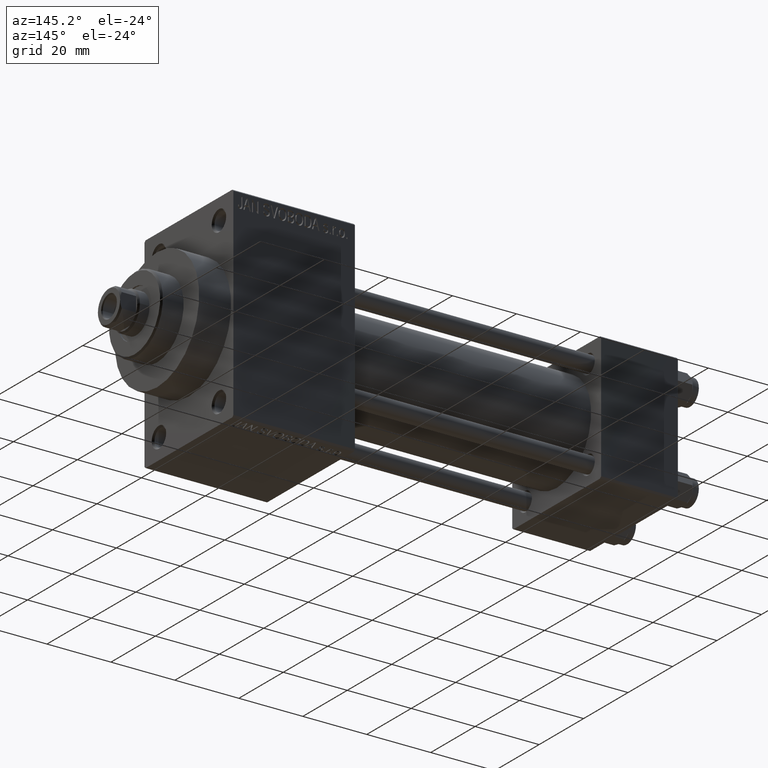
[diagram: clean part render]
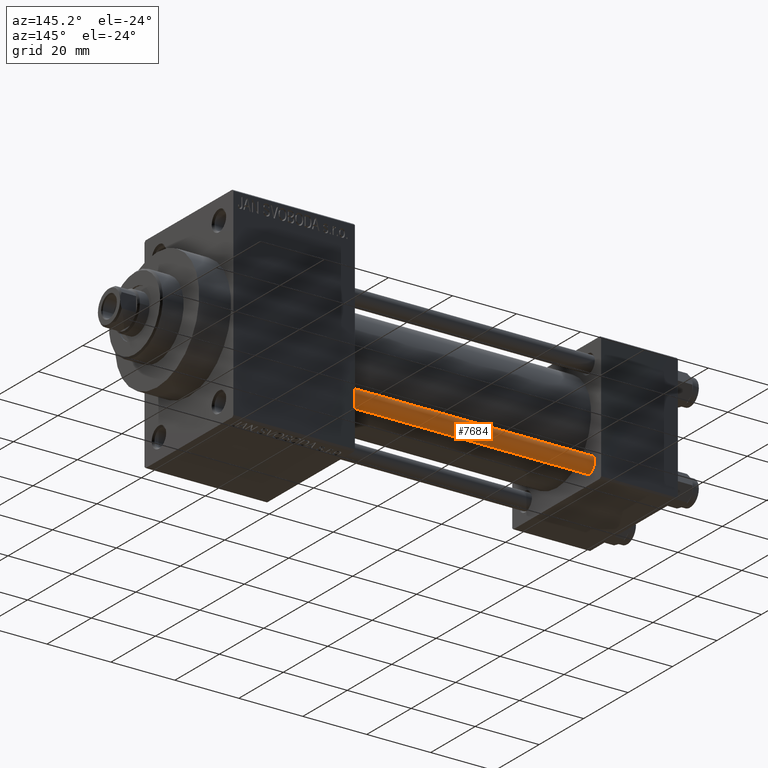
[diagram: same view with one face highlighted and labeled with its STEP entity id]
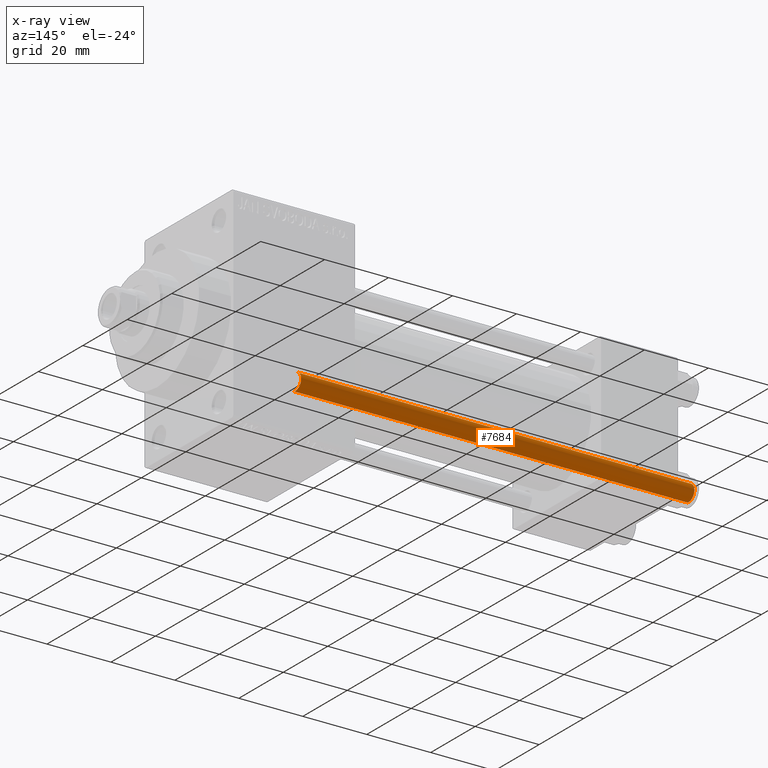
[diagram: x-ray of the same camera — body ghosted, the highlighted face saturated]
A machine part, auxiliary view. The second image highlights one B-rep face of the part: STEP entity #7684.
The next image is the same camera in x-ray: the body ghosted, the highlighted face saturated — about 0% of this face is hidden behind the body in this view.
In plain terms, the highlighted cylindrical surface (edge-blend (fillet) strip) has radius 2.5 mm, axis along (1, -0, 0).
Its self-contained STEP definition (entity closure, byte-faithful):
#597 = EDGE_LOOP ( 'NONE', ( #34103, #6961, #8310, #22527 ) ) ;
#3958 = CIRCLE ( 'NONE', #4737, 2.500000000000000000 ) ;
#4737 = AXIS2_PLACEMENT_3D ( 'NONE', #17490, #28925, #6769 ) ;
#6747 = CARTESIAN_POINT ( 'NONE',  ( 0.000000000000000000, 0.000000000000000000, 123.5000000000000000 ) ) ;
#6769 = DIRECTION ( 'NONE',  ( 1.000000000000000000, 0.000000000000000000, 0.000000000000000000 ) ) ;
#6961 = ORIENTED_EDGE ( 'NONE', *, *, #10254, .T. ) ;
#7637 = CARTESIAN_POINT ( 'NONE',  ( -2.500000000000000000, 0.000000000000000000, 124.0000000000000000 ) ) ;
#7684 = ADVANCED_FACE ( 'NONE', ( #31568 ), #16819, .T. ) ;
#7699 = CIRCLE ( 'NONE', #27442, 2.500000000000000000 ) ;
#8310 = ORIENTED_EDGE ( 'NONE', *, *, #34347, .T. ) ;
#10254 = EDGE_CURVE ( 'NONE', #34848, #20727, #12142, .T. ) ;
#12142 = LINE ( 'NONE', #26675, #40678 ) ;
#15264 = DIRECTION ( 'NONE',  ( -0.000000000000000000, -0.000000000000000000, -1.000000000000000000 ) ) ;
#15743 = CARTESIAN_POINT ( 'NONE',  ( 2.500000000000000000, 3.061616997868383141E-16, 0.5000000000000004441 ) ) ;
#16819 = CYLINDRICAL_SURFACE ( 'NONE', #28407, 2.500000000000000000 ) ;
#17490 = CARTESIAN_POINT ( 'NONE',  ( 0.000000000000000000, 0.000000000000000000, 0.5000000000000004441 ) ) ;
#20727 = VERTEX_POINT ( 'NONE', #15743 ) ;
#21281 = DIRECTION ( 'NONE',  ( 1.000000000000000000, 0.000000000000000000, 0.000000000000000000 ) ) ;
#21315 = DIRECTION ( 'NONE',  ( -0.000000000000000000, -0.000000000000000000, -1.000000000000000000 ) ) ;
#22527 = ORIENTED_EDGE ( 'NONE', *, *, #31761, .F. ) ;
#22853 = VERTEX_POINT ( 'NONE', #43037 ) ;
#23040 = VECTOR ( 'NONE', #36460, 1000.000000000000000 ) ;
#24165 = CARTESIAN_POINT ( 'NONE',  ( -2.500000000000000000, 0.000000000000000000, 0.5000000000000004441 ) ) ;
#26675 = CARTESIAN_POINT ( 'NONE',  ( 2.500000000000000000, 3.061616997868383141E-16, 124.0000000000000000 ) ) ;
#26827 = VERTEX_POINT ( 'NONE', #24165 ) ;
#27442 = AXIS2_PLACEMENT_3D ( 'NONE', #6747, #42947, #21281 ) ;
#27551 = EDGE_CURVE ( 'NONE', #22853, #34848, #7699, .T. ) ;
#27994 = DIRECTION ( 'NONE',  ( -1.000000000000000000, 0.000000000000000000, 0.000000000000000000 ) ) ;
#28407 = AXIS2_PLACEMENT_3D ( 'NONE', #28463, #21315, #27994 ) ;
#28463 = CARTESIAN_POINT ( 'NONE',  ( 0.000000000000000000, 0.000000000000000000, 124.0000000000000000 ) ) ;
#28925 = DIRECTION ( 'NONE',  ( -0.000000000000000000, -0.000000000000000000, 1.000000000000000000 ) ) ;
#31568 = FACE_OUTER_BOUND ( 'NONE', #597, .T. ) ;
#31761 = EDGE_CURVE ( 'NONE', #22853, #26827, #40029, .T. ) ;
#32557 = CARTESIAN_POINT ( 'NONE',  ( 2.500000000000000000, 3.061616997868383141E-16, 123.5000000000000000 ) ) ;
#34103 = ORIENTED_EDGE ( 'NONE', *, *, #27551, .T. ) ;
#34347 = EDGE_CURVE ( 'NONE', #20727, #26827, #3958, .T. ) ;
#34848 = VERTEX_POINT ( 'NONE', #32557 ) ;
#36460 = DIRECTION ( 'NONE',  ( -0.000000000000000000, -0.000000000000000000, -1.000000000000000000 ) ) ;
#40029 = LINE ( 'NONE', #7637, #23040 ) ;
#40678 = VECTOR ( 'NONE', #15264, 1000.000000000000000 ) ;
#42947 = DIRECTION ( 'NONE',  ( 0.000000000000000000, 0.000000000000000000, -1.000000000000000000 ) ) ;
#43037 = CARTESIAN_POINT ( 'NONE',  ( -2.500000000000000000, 0.000000000000000000, 123.5000000000000000 ) ) ;